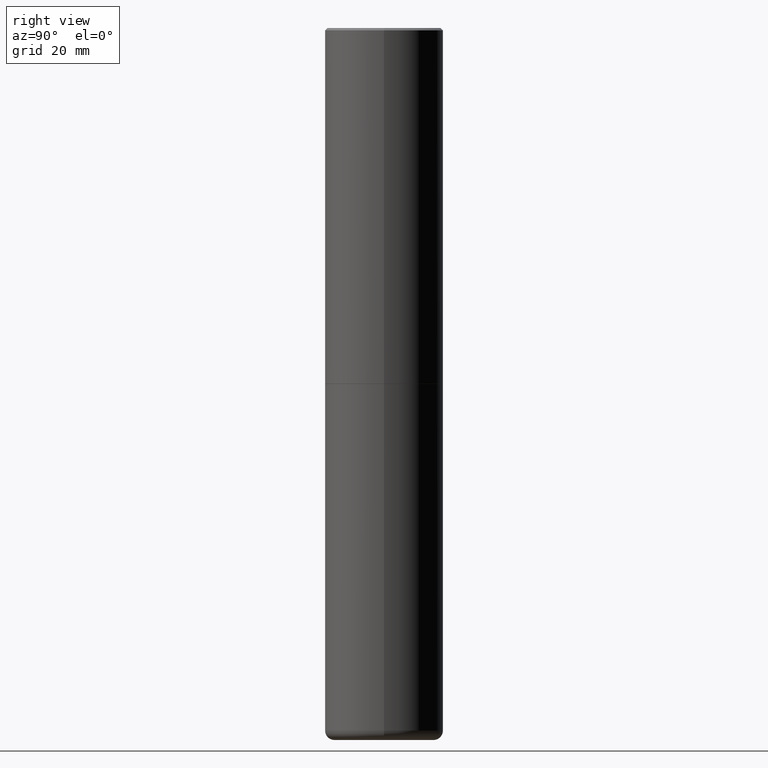
[diagram: clean part render]
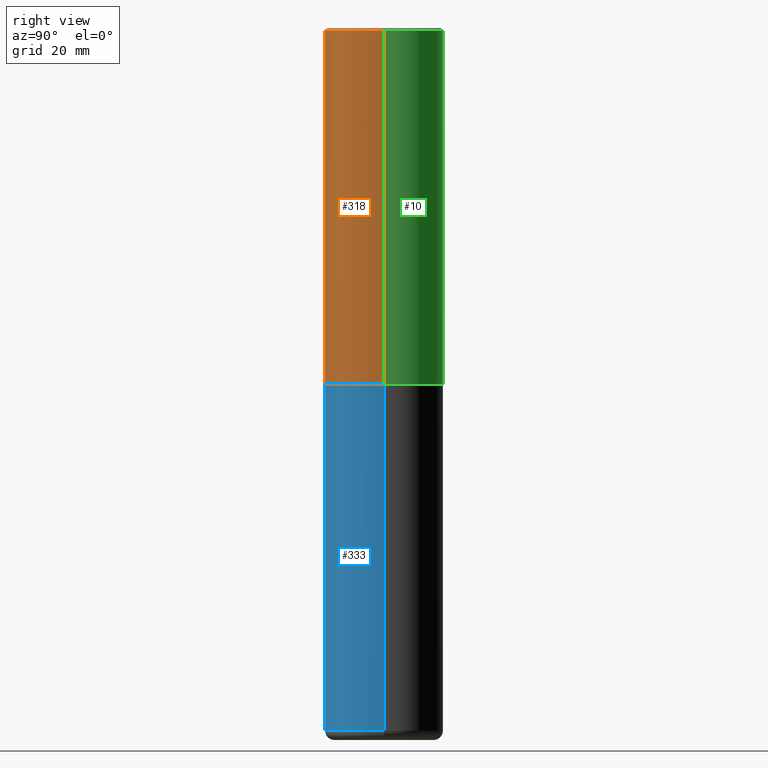
[diagram: same view with three faces highlighted in distinct colors, each labeled with its STEP entity id]
A machine part, right view with three faces highlighted in distinct colors.
Their STEP definitions:

[orange] entity #318 — the highlighted cylindrical surface (partial cylindrical patch) has radius 12.5006 mm, axis along (-0, 0, 1).
#23 = DIRECTION ( 'NONE',  ( -2.445468806185136597E-29, 3.491481338843145583E-15, 1.000000000000000000 ) ) ;
#52 = EDGE_CURVE ( 'NONE', #200, #71, #120, .T. ) ;
#54 = CARTESIAN_POINT ( 'NONE',  ( -0.4921500000000001984, 3.496936074043334475E-15, -2.420853904668952630E-29 ) ) ;
#61 = CYLINDRICAL_SURFACE ( 'NONE', #159, 0.4921500000000001984 ) ;
#62 = CARTESIAN_POINT ( 'NONE',  ( 0.4921500000000003094, -1.374247054968661252E-14, -2.951700000000000212 ) ) ;
#71 = VERTEX_POINT ( 'NONE', #337 ) ;
#73 = ORIENTED_EDGE ( 'NONE', *, *, #190, .T. ) ;
#113 = EDGE_CURVE ( 'NONE', #200, #294, #390, .T. ) ;
#120 = LINE ( 'NONE', #54, #415 ) ;
#126 = CARTESIAN_POINT ( 'NONE',  ( 0.4921500000000000319, -3.446223716380123138E-15, -0.02000000000000010797 ) ) ;
#143 = DIRECTION ( 'NONE',  ( 1.000000000000000000, -6.982962677686265922E-15, 0.000000000000000000 ) ) ;
#155 = DIRECTION ( 'NONE',  ( -2.445468806185136877E-29, 3.491481338843145188E-15, 1.000000000000000000 ) ) ;
#157 = LINE ( 'NONE', #283, #285 ) ;
#158 = CIRCLE ( 'NONE', #399, 0.4921500000000000319 ) ;
#159 = AXIS2_PLACEMENT_3D ( 'NONE', #177, #23, #412 ) ;
#164 = ORIENTED_EDGE ( 'NONE', *, *, #113, .T. ) ;
#169 = CARTESIAN_POINT ( 'NONE',  ( 7.218290275216666916E-29, -1.030580546786331359E-14, -2.951700000000000212 ) ) ;
#177 = CARTESIAN_POINT ( 'NONE',  ( 0.000000000000000000, 0.000000000000000000, 0.000000000000000000 ) ) ;
#185 = AXIS2_PLACEMENT_3D ( 'NONE', #169, #301, #143 ) ;
#190 = EDGE_CURVE ( 'NONE', #294, #263, #157, .T. ) ;
#200 = VERTEX_POINT ( 'NONE', #414 ) ;
#230 = ORIENTED_EDGE ( 'NONE', *, *, #52, .F. ) ;
#245 = EDGE_CURVE ( 'NONE', #71, #263, #158, .T. ) ;
#263 = VERTEX_POINT ( 'NONE', #126 ) ;
#283 = CARTESIAN_POINT ( 'NONE',  ( 0.4921500000000001984, -3.436665081823297354E-15, 2.399810400207970443E-29 ) ) ;
#285 = VECTOR ( 'NONE', #155, 39.37007874015748143 ) ;
#294 = VERTEX_POINT ( 'NONE', #62 ) ;
#301 = DIRECTION ( 'NONE',  ( -2.445468806185136597E-29, 3.491481338843145583E-15, 1.000000000000000000 ) ) ;
#316 = DIRECTION ( 'NONE',  ( 1.000000000000000000, -6.982962677686265922E-15, 0.000000000000000000 ) ) ;
#318 = ADVANCED_FACE ( 'NONE', ( #344 ), #61, .T. ) ;
#327 = DIRECTION ( 'NONE',  ( -2.445468806185136877E-29, 3.491481338843145188E-15, 1.000000000000000000 ) ) ;
#337 = CARTESIAN_POINT ( 'NONE',  ( -0.4921500000000000319, 3.366835455046432873E-15, -0.02000000000000010797 ) ) ;
#344 = FACE_OUTER_BOUND ( 'NONE', #403, .T. ) ;
#349 = DIRECTION ( 'NONE',  ( -2.445468806185136597E-29, 3.491481338843145583E-15, 1.000000000000000000 ) ) ;
#368 = ORIENTED_EDGE ( 'NONE', *, *, #245, .F. ) ;
#390 = CIRCLE ( 'NONE', #185, 0.4921500000000003094 ) ;
#399 = AXIS2_PLACEMENT_3D ( 'NONE', #413, #349, #316 ) ;
#403 = EDGE_LOOP ( 'NONE', ( #230, #164, #73, #368 ) ) ;
#412 = DIRECTION ( 'NONE',  ( 1.000000000000000000, -6.982962677686266711E-15, 4.876176775795935232E-29 ) ) ;
#413 = CARTESIAN_POINT ( 'NONE',  ( 4.890937612370299433E-31, -6.982962677686328587E-17, -0.02000000000000010797 ) ) ;
#414 = CARTESIAN_POINT ( 'NONE',  ( -0.4921500000000003094, -1.690881473276752982E-15, -2.951700000000000212 ) ) ;
#415 = VECTOR ( 'NONE', #327, 39.37007874015748143 ) ;

[blue] entity #333 — the highlighted cylindrical surface (partial cylindrical patch) has radius 12.5006 mm, axis along (-0, 0, 1).
#9 = ORIENTED_EDGE ( 'NONE', *, *, #276, .T. ) ;
#18 = CARTESIAN_POINT ( 'NONE',  ( 7.220735744022852519E-29, -1.030929694920215502E-14, -2.952700000000000102 ) ) ;
#28 = EDGE_CURVE ( 'NONE', #205, #42, #236, .T. ) ;
#32 = CARTESIAN_POINT ( 'NONE',  ( -0.4921499999999999764, -1.684722739112790494E-14, -5.826799999999999535 ) ) ;
#42 = VERTEX_POINT ( 'NONE', #193 ) ;
#45 = VERTEX_POINT ( 'NONE', #144 ) ;
#56 = DIRECTION ( 'NONE',  ( -2.445468806185136597E-29, 3.491481338843145583E-15, 1.000000000000000000 ) ) ;
#65 = LINE ( 'NONE', #179, #385 ) ;
#72 = FACE_OUTER_BOUND ( 'NONE', #323, .T. ) ;
#74 = DIRECTION ( 'NONE',  ( -2.445468806185136877E-29, 3.491481338843145188E-15, 1.000000000000000000 ) ) ;
#95 = CARTESIAN_POINT ( 'NONE',  ( 1.424925763987955342E-28, -2.034416346517123863E-14, -5.826799999999999535 ) ) ;
#97 = EDGE_CURVE ( 'NONE', #351, #205, #147, .T. ) ;
#121 = CARTESIAN_POINT ( 'NONE',  ( -0.4921499999999999764, -1.182979413314336550E-14, -2.952700000000000102 ) ) ;
#144 = CARTESIAN_POINT ( 'NONE',  ( 0.4921499999999999764, -2.378082854699453914E-14, -5.826799999999999535 ) ) ;
#147 = LINE ( 'NONE', #275, #325 ) ;
#163 = DIRECTION ( 'NONE',  ( 1.000000000000000000, -6.982962677686265922E-15, 4.876176775795935793E-29 ) ) ;
#179 = CARTESIAN_POINT ( 'NONE',  ( 0.4921499999999999764, -3.436665081823295777E-15, 2.399810400207969603E-29 ) ) ;
#193 = CARTESIAN_POINT ( 'NONE',  ( 0.4921499999999999764, -1.374596203102545079E-14, -2.952700000000000102 ) ) ;
#205 = VERTEX_POINT ( 'NONE', #121 ) ;
#217 = EDGE_CURVE ( 'NONE', #351, #45, #299, .T. ) ;
#229 = CARTESIAN_POINT ( 'NONE',  ( 0.000000000000000000, 0.000000000000000000, 0.000000000000000000 ) ) ;
#236 = CIRCLE ( 'NONE', #312, 0.4921499999999999764 ) ;
#250 = DIRECTION ( 'NONE',  ( -2.445468806185136597E-29, 3.491481338843145583E-15, 1.000000000000000000 ) ) ;
#275 = CARTESIAN_POINT ( 'NONE',  ( -0.4921499999999999764, 3.496936074043332897E-15, -2.420853904668951509E-29 ) ) ;
#276 = EDGE_CURVE ( 'NONE', #45, #42, #65, .T. ) ;
#277 = DIRECTION ( 'NONE',  ( 1.000000000000000000, -6.982962677686265922E-15, 0.000000000000000000 ) ) ;
#281 = DIRECTION ( 'NONE',  ( 1.000000000000000000, -6.982962677686266711E-15, 0.000000000000000000 ) ) ;
#290 = CYLINDRICAL_SURFACE ( 'NONE', #343, 0.4921499999999999764 ) ;
#299 = CIRCLE ( 'NONE', #342, 0.4921499999999999209 ) ;
#312 = AXIS2_PLACEMENT_3D ( 'NONE', #18, #56, #277 ) ;
#323 = EDGE_LOOP ( 'NONE', ( #396, #361, #9, #393 ) ) ;
#325 = VECTOR ( 'NONE', #74, 39.37007874015748143 ) ;
#333 = ADVANCED_FACE ( 'NONE', ( #72 ), #290, .T. ) ;
#342 = AXIS2_PLACEMENT_3D ( 'NONE', #95, #250, #281 ) ;
#343 = AXIS2_PLACEMENT_3D ( 'NONE', #229, #360, #163 ) ;
#351 = VERTEX_POINT ( 'NONE', #32 ) ;
#360 = DIRECTION ( 'NONE',  ( -2.445468806185136597E-29, 3.491481338843145583E-15, 1.000000000000000000 ) ) ;
#361 = ORIENTED_EDGE ( 'NONE', *, *, #217, .T. ) ;
#382 = DIRECTION ( 'NONE',  ( -2.445468806185136877E-29, 3.491481338843145188E-15, 1.000000000000000000 ) ) ;
#385 = VECTOR ( 'NONE', #382, 39.37007874015748143 ) ;
#393 = ORIENTED_EDGE ( 'NONE', *, *, #28, .F. ) ;
#396 = ORIENTED_EDGE ( 'NONE', *, *, #97, .F. ) ;

[green] entity #10 — the highlighted cylindrical surface (partial cylindrical patch) has radius 12.5006 mm, axis along (-0, 0, 1).
#10 = ADVANCED_FACE ( 'NONE', ( #60 ), #86, .T. ) ;
#14 = CARTESIAN_POINT ( 'NONE',  ( 4.890937612370299433E-31, -6.982962677686328587E-17, -0.02000000000000010797 ) ) ;
#30 = CIRCLE ( 'NONE', #116, 0.4921500000000000319 ) ;
#52 = EDGE_CURVE ( 'NONE', #200, #71, #120, .T. ) ;
#54 = CARTESIAN_POINT ( 'NONE',  ( -0.4921500000000001984, 3.496936074043334475E-15, -2.420853904668952630E-29 ) ) ;
#60 = FACE_OUTER_BOUND ( 'NONE', #81, .T. ) ;
#62 = CARTESIAN_POINT ( 'NONE',  ( 0.4921500000000003094, -1.374247054968661252E-14, -2.951700000000000212 ) ) ;
#71 = VERTEX_POINT ( 'NONE', #337 ) ;
#81 = EDGE_LOOP ( 'NONE', ( #353, #260, #287, #132 ) ) ;
#86 = CYLINDRICAL_SURFACE ( 'NONE', #208, 0.4921500000000001984 ) ;
#91 = EDGE_CURVE ( 'NONE', #263, #71, #30, .T. ) ;
#116 = AXIS2_PLACEMENT_3D ( 'NONE', #14, #362, #341 ) ;
#120 = LINE ( 'NONE', #54, #415 ) ;
#126 = CARTESIAN_POINT ( 'NONE',  ( 0.4921500000000000319, -3.446223716380123138E-15, -0.02000000000000010797 ) ) ;
#132 = ORIENTED_EDGE ( 'NONE', *, *, #190, .F. ) ;
#153 = CIRCLE ( 'NONE', #221, 0.4921500000000003094 ) ;
#155 = DIRECTION ( 'NONE',  ( -2.445468806185136877E-29, 3.491481338843145188E-15, 1.000000000000000000 ) ) ;
#157 = LINE ( 'NONE', #283, #285 ) ;
#160 = CARTESIAN_POINT ( 'NONE',  ( 7.218290275216666916E-29, -1.030580546786331359E-14, -2.951700000000000212 ) ) ;
#190 = EDGE_CURVE ( 'NONE', #294, #263, #157, .T. ) ;
#200 = VERTEX_POINT ( 'NONE', #414 ) ;
#208 = AXIS2_PLACEMENT_3D ( 'NONE', #397, #309, #375 ) ;
#221 = AXIS2_PLACEMENT_3D ( 'NONE', #160, #264, #258 ) ;
#258 = DIRECTION ( 'NONE',  ( 1.000000000000000000, -6.982962677686265922E-15, 0.000000000000000000 ) ) ;
#260 = ORIENTED_EDGE ( 'NONE', *, *, #52, .T. ) ;
#263 = VERTEX_POINT ( 'NONE', #126 ) ;
#264 = DIRECTION ( 'NONE',  ( -2.445468806185136597E-29, 3.491481338843145583E-15, 1.000000000000000000 ) ) ;
#283 = CARTESIAN_POINT ( 'NONE',  ( 0.4921500000000001984, -3.436665081823297354E-15, 2.399810400207970443E-29 ) ) ;
#285 = VECTOR ( 'NONE', #155, 39.37007874015748143 ) ;
#287 = ORIENTED_EDGE ( 'NONE', *, *, #91, .F. ) ;
#294 = VERTEX_POINT ( 'NONE', #62 ) ;
#309 = DIRECTION ( 'NONE',  ( -2.445468806185136597E-29, 3.491481338843145583E-15, 1.000000000000000000 ) ) ;
#327 = DIRECTION ( 'NONE',  ( -2.445468806185136877E-29, 3.491481338843145188E-15, 1.000000000000000000 ) ) ;
#337 = CARTESIAN_POINT ( 'NONE',  ( -0.4921500000000000319, 3.366835455046432873E-15, -0.02000000000000010797 ) ) ;
#341 = DIRECTION ( 'NONE',  ( 1.000000000000000000, -6.982962677686265922E-15, 0.000000000000000000 ) ) ;
#353 = ORIENTED_EDGE ( 'NONE', *, *, #376, .T. ) ;
#362 = DIRECTION ( 'NONE',  ( -2.445468806185136597E-29, 3.491481338843145583E-15, 1.000000000000000000 ) ) ;
#375 = DIRECTION ( 'NONE',  ( 1.000000000000000000, -6.982962677686266711E-15, 4.876176775795935232E-29 ) ) ;
#376 = EDGE_CURVE ( 'NONE', #294, #200, #153, .T. ) ;
#397 = CARTESIAN_POINT ( 'NONE',  ( 0.000000000000000000, 0.000000000000000000, 0.000000000000000000 ) ) ;
#414 = CARTESIAN_POINT ( 'NONE',  ( -0.4921500000000003094, -1.690881473276752982E-15, -2.951700000000000212 ) ) ;
#415 = VECTOR ( 'NONE', #327, 39.37007874015748143 ) ;